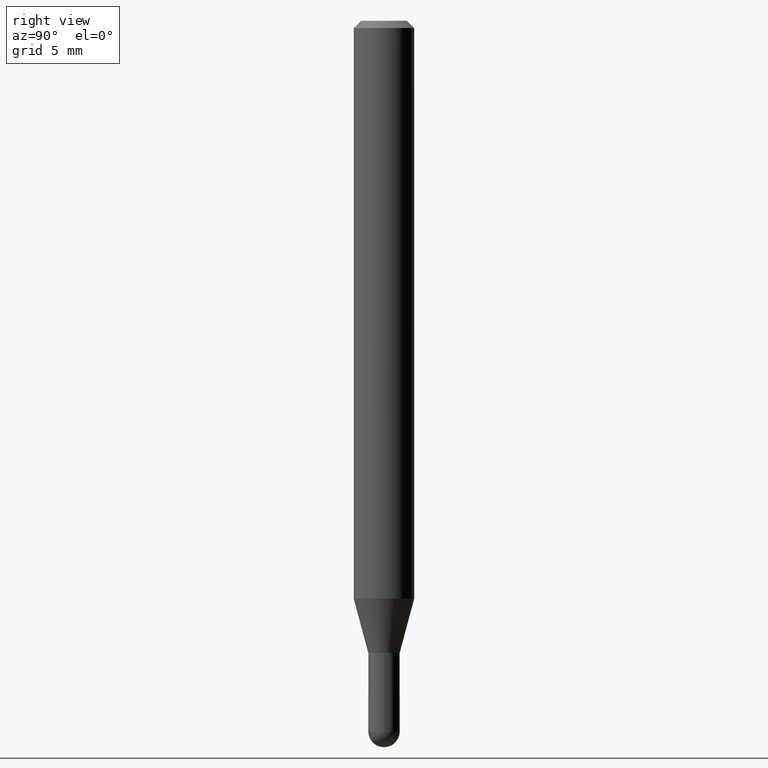
[diagram: clean part render]
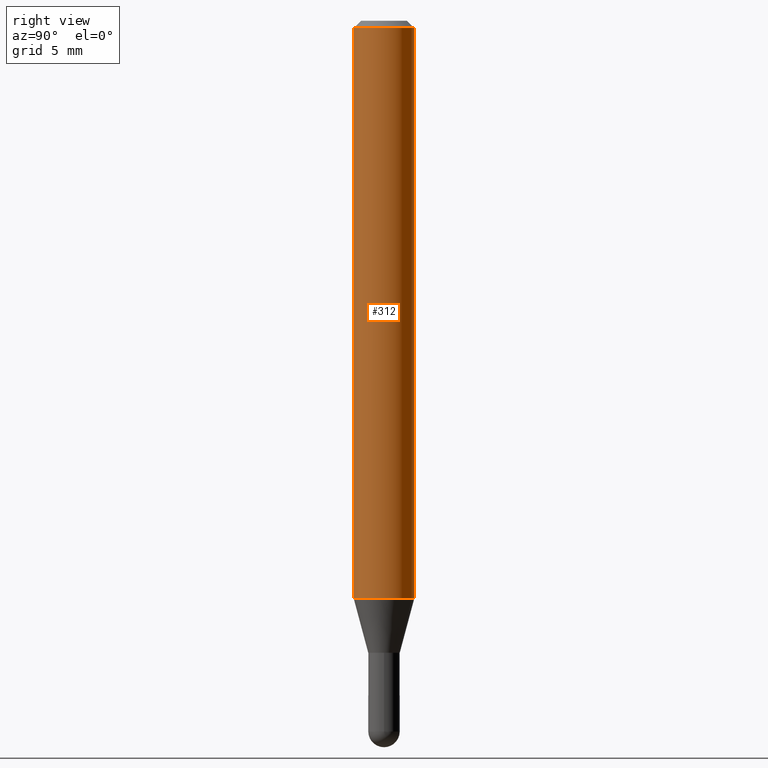
[diagram: same view with one face highlighted and labeled with its STEP entity id]
A machine part, right view. The second image highlights one B-rep face of the part: STEP entity #312.
In plain terms, the highlighted cylindrical surface (edge-blend (fillet) strip) has radius 1.5875 mm, axis along (-0, 0, 1).
Its self-contained STEP definition (entity closure, byte-faithful):
#1 = CARTESIAN_POINT ( 'NONE',  ( -4.364351673553916201E-16, -0.06250000000000000000, 2.182154729314660676E-16 ) ) ;
#48 = CARTESIAN_POINT ( 'NONE',  ( 4.440892098500919026E-16, 0.06249999999999995143, -0.01500000000000028394 ) ) ;
#49 = VECTOR ( 'NONE', #433, 39.37007874015748143 ) ;
#63 = CARTESIAN_POINT ( 'NONE',  ( -4.364351673553912750E-16, -0.06250000000000005551, -0.01499999999999984852 ) ) ;
#66 = DIRECTION ( 'NONE',  ( -6.982962677686265922E-15, -1.000000000000000000, 4.370956789862821150E-15 ) ) ;
#73 = VERTEX_POINT ( 'NONE', #211 ) ;
#110 = EDGE_CURVE ( 'NONE', #158, #354, #355, .T. ) ;
#112 = CARTESIAN_POINT ( 'NONE',  ( 3.668238583506880511E-31, -5.237171350355208844E-17, -0.01500000000000006710 ) ) ;
#115 = CARTESIAN_POINT ( 'NONE',  ( -4.364351673553626788E-16, -0.06250000000000420497, -1.193038475772937090 ) ) ;
#131 = EDGE_CURVE ( 'NONE', #158, #73, #505, .T. ) ;
#133 = ORIENTED_EDGE ( 'NONE', *, *, #131, .T. ) ;
#158 = VERTEX_POINT ( 'NONE', #115 ) ;
#182 = CYLINDRICAL_SURFACE ( 'NONE', #426, 0.06250000000000000000 ) ;
#196 = DIRECTION ( 'NONE',  ( -6.982962677686265922E-15, -1.000000000000000000, 3.483106191921935554E-15 ) ) ;
#211 = CARTESIAN_POINT ( 'NONE',  ( 4.440892098500915082E-16, 0.06249999999999581585, -1.193038475772937534 ) ) ;
#247 = ORIENTED_EDGE ( 'NONE', *, *, #110, .F. ) ;
#260 = VERTEX_POINT ( 'NONE', #48 ) ;
#262 = CARTESIAN_POINT ( 'NONE',  ( 0.000000000000000000, 0.000000000000000000, 0.000000000000000000 ) ) ;
#271 = CARTESIAN_POINT ( 'NONE',  ( 2.917566512292338877E-29, -4.165431283459630841E-15, -1.193038475772937312 ) ) ;
#304 = FACE_OUTER_BOUND ( 'NONE', #320, .T. ) ;
#309 = CARTESIAN_POINT ( 'NONE',  ( 4.440892098500625669E-16, 0.06250000000000000000, -2.182154729314660676E-16 ) ) ;
#312 = ADVANCED_FACE ( 'NONE', ( #304 ), #182, .T. ) ;
#319 = DIRECTION ( 'NONE',  ( -2.445492389004576288E-29, 3.491447566903457082E-15, 1.000000000000000000 ) ) ;
#320 = EDGE_LOOP ( 'NONE', ( #133, #510, #408, #247 ) ) ;
#330 = CIRCLE ( 'NONE', #345, 0.06250000000000000000 ) ;
#345 = AXIS2_PLACEMENT_3D ( 'NONE', #112, #438, #196 ) ;
#346 = DIRECTION ( 'NONE',  ( -6.982962677686265922E-15, -1.000000000000000000, 3.491447566903457082E-15 ) ) ;
#350 = LINE ( 'NONE', #309, #401 ) ;
#354 = VERTEX_POINT ( 'NONE', #63 ) ;
#355 = LINE ( 'NONE', #1, #49 ) ;
#372 = EDGE_CURVE ( 'NONE', #73, #260, #350, .T. ) ;
#375 = AXIS2_PLACEMENT_3D ( 'NONE', #271, #425, #66 ) ;
#401 = VECTOR ( 'NONE', #319, 39.37007874015748143 ) ;
#408 = ORIENTED_EDGE ( 'NONE', *, *, #409, .F. ) ;
#409 = EDGE_CURVE ( 'NONE', #354, #260, #330, .T. ) ;
#425 = DIRECTION ( 'NONE',  ( -2.445492389004576288E-29, 3.491447566903457476E-15, 1.000000000000000000 ) ) ;
#426 = AXIS2_PLACEMENT_3D ( 'NONE', #262, #463, #346 ) ;
#433 = DIRECTION ( 'NONE',  ( -2.445492389004576288E-29, 3.491447566903457082E-15, 1.000000000000000000 ) ) ;
#438 = DIRECTION ( 'NONE',  ( -2.445492389004576288E-29, 3.491447566903457476E-15, 1.000000000000000000 ) ) ;
#463 = DIRECTION ( 'NONE',  ( -2.445492389004576288E-29, 3.491447566903457476E-15, 1.000000000000000000 ) ) ;
#505 = CIRCLE ( 'NONE', #375, 0.06250000000000000000 ) ;
#510 = ORIENTED_EDGE ( 'NONE', *, *, #372, .T. ) ;